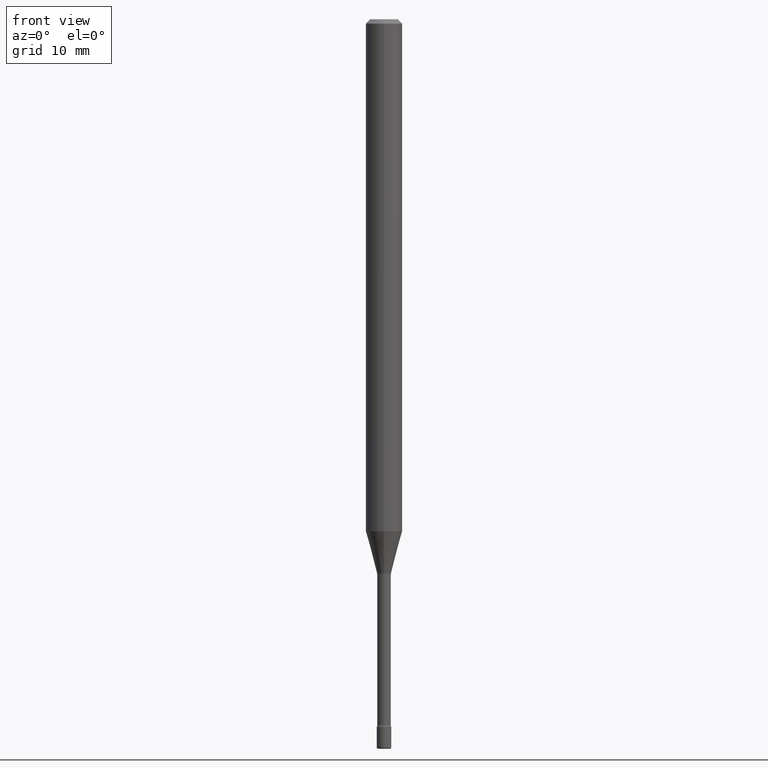
[diagram: clean part render]
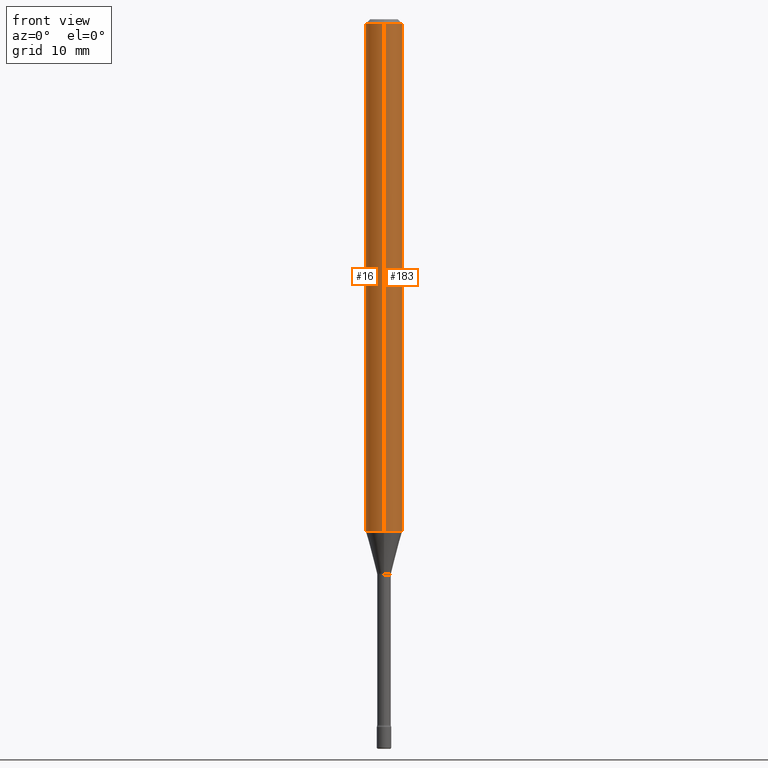
[diagram: same view with one multi-face feature highlighted, each face labeled with its STEP entity id]
A machine part, front view. The highlighted faces form ONE feature: a constant-radius fillet chain: 2 tangent blend faces with common blend radius 1.5875 mm. The faces share edges in the B-rep.
Their STEP definitions:
[1] entity #183 (Cylinder):
#8 = CARTESIAN_POINT ( 'NONE',  ( 3.668187614360904294E-31, -5.237244341073204376E-17, -0.01500000000000002720 ) ) ;
#17 = VERTEX_POINT ( 'NONE', #524 ) ;
#20 = VECTOR ( 'NONE', #506, 39.37007874015748143 ) ;
#53 = ORIENTED_EDGE ( 'NONE', *, *, #402, .F. ) ;
#59 = AXIS2_PLACEMENT_3D ( 'NONE', #60, #410, #224 ) ;
#60 = CARTESIAN_POINT ( 'NONE',  ( -1.169113584055446105E-44, 1.669184350826100908E-30, 4.780733988912460139E-16 ) ) ;
#68 = CARTESIAN_POINT ( 'NONE',  ( 4.440892098500625669E-16, 0.06250000000000000000, 2.598548846798629687E-16 ) ) ;
#95 = ORIENTED_EDGE ( 'NONE', *, *, #437, .T. ) ;
#101 = DIRECTION ( 'NONE',  ( -6.982962677686265922E-15, -1.000000000000000000, 4.370956789862821150E-15 ) ) ;
#109 = CIRCLE ( 'NONE', #136, 0.06250000000000000000 ) ;
#122 = EDGE_LOOP ( 'NONE', ( #95, #492, #53, #458 ) ) ;
#136 = AXIS2_PLACEMENT_3D ( 'NONE', #511, #547, #101 ) ;
#141 = VERTEX_POINT ( 'NONE', #316 ) ;
#170 = CIRCLE ( 'NONE', #232, 0.06250000000000000000 ) ;
#173 = EDGE_CURVE ( 'NONE', #17, #188, #302, .T. ) ;
#183 = ADVANCED_FACE ( 'NONE', ( #325 ), #496, .T. ) ;
#188 = VERTEX_POINT ( 'NONE', #228 ) ;
#224 = DIRECTION ( 'NONE',  ( -6.982962677686265922E-15, -1.000000000000000000, 3.491496227382130301E-15 ) ) ;
#228 = CARTESIAN_POINT ( 'NONE',  ( -4.364351673553912750E-16, -0.06250000000000005551, -0.01499999999999981036 ) ) ;
#232 = AXIS2_PLACEMENT_3D ( 'NONE', #8, #386, #268 ) ;
#268 = DIRECTION ( 'NONE',  ( -6.982962677686265922E-15, -1.000000000000000000, 3.483106191921935554E-15 ) ) ;
#280 = VECTOR ( 'NONE', #373, 39.37007874015748143 ) ;
#281 = VERTEX_POINT ( 'NONE', #558 ) ;
#302 = LINE ( 'NONE', #540, #20 ) ;
#316 = CARTESIAN_POINT ( 'NONE',  ( 4.440892098501052147E-16, 0.06249999999999384520, -1.754450018504814857 ) ) ;
#325 = FACE_OUTER_BOUND ( 'NONE', #122, .T. ) ;
#373 = DIRECTION ( 'NONE',  ( -2.445458409573931805E-29, 3.491496227382129512E-15, 1.000000000000000000 ) ) ;
#386 = DIRECTION ( 'NONE',  ( -2.445458409573931525E-29, 3.491496227382129512E-15, 1.000000000000000000 ) ) ;
#402 = EDGE_CURVE ( 'NONE', #188, #281, #170, .T. ) ;
#410 = DIRECTION ( 'NONE',  ( -2.445458409573931525E-29, 3.491496227382129512E-15, 1.000000000000000000 ) ) ;
#437 = EDGE_CURVE ( 'NONE', #17, #141, #109, .T. ) ;
#454 = LINE ( 'NONE', #68, #280 ) ;
#458 = ORIENTED_EDGE ( 'NONE', *, *, #173, .F. ) ;
#492 = ORIENTED_EDGE ( 'NONE', *, *, #495, .T. ) ;
#495 = EDGE_CURVE ( 'NONE', #141, #281, #454, .T. ) ;
#496 = CYLINDRICAL_SURFACE ( 'NONE', #59, 0.06250000000000000000 ) ;
#506 = DIRECTION ( 'NONE',  ( -2.445458409573931805E-29, 3.491496227382129512E-15, 1.000000000000000000 ) ) ;
#511 = CARTESIAN_POINT ( 'NONE',  ( 4.290434551929739000E-29, -6.125655620740067716E-15, -1.754450018504814635 ) ) ;
#524 = CARTESIAN_POINT ( 'NONE',  ( -4.364351673553489230E-16, -0.06250000000000614786, -1.754450018504814190 ) ) ;
#540 = CARTESIAN_POINT ( 'NONE',  ( -4.364351673553916201E-16, -0.06250000000000000000, 6.962919131026292564E-16 ) ) ;
#547 = DIRECTION ( 'NONE',  ( -2.445458409573931525E-29, 3.491496227382129512E-15, 1.000000000000000000 ) ) ;
#558 = CARTESIAN_POINT ( 'NONE',  ( 4.440892098501058063E-16, 0.06249999999999995143, -0.01500000000000024578 ) ) ;
[2] entity #16 (Cylinder):
#13 = AXIS2_PLACEMENT_3D ( 'NONE', #258, #533, #529 ) ;
#16 = ADVANCED_FACE ( 'NONE', ( #83 ), #531, .T. ) ;
#17 = VERTEX_POINT ( 'NONE', #524 ) ;
#20 = VECTOR ( 'NONE', #506, 39.37007874015748143 ) ;
#25 = ORIENTED_EDGE ( 'NONE', *, *, #495, .F. ) ;
#50 = ORIENTED_EDGE ( 'NONE', *, *, #125, .T. ) ;
#63 = CARTESIAN_POINT ( 'NONE',  ( 3.668187614360904294E-31, -5.237244341073204376E-17, -0.01500000000000002720 ) ) ;
#68 = CARTESIAN_POINT ( 'NONE',  ( 4.440892098500625669E-16, 0.06250000000000000000, 2.598548846798629687E-16 ) ) ;
#83 = FACE_OUTER_BOUND ( 'NONE', #147, .T. ) ;
#104 = ORIENTED_EDGE ( 'NONE', *, *, #173, .T. ) ;
#125 = EDGE_CURVE ( 'NONE', #141, #17, #181, .T. ) ;
#141 = VERTEX_POINT ( 'NONE', #316 ) ;
#147 = EDGE_LOOP ( 'NONE', ( #25, #50, #104, #187 ) ) ;
#173 = EDGE_CURVE ( 'NONE', #17, #188, #302, .T. ) ;
#181 = CIRCLE ( 'NONE', #13, 0.06250000000000000000 ) ;
#187 = ORIENTED_EDGE ( 'NONE', *, *, #532, .F. ) ;
#188 = VERTEX_POINT ( 'NONE', #228 ) ;
#203 = DIRECTION ( 'NONE',  ( -2.445458409573931525E-29, 3.491496227382129512E-15, 1.000000000000000000 ) ) ;
#228 = CARTESIAN_POINT ( 'NONE',  ( -4.364351673553912750E-16, -0.06250000000000005551, -0.01499999999999981036 ) ) ;
#258 = CARTESIAN_POINT ( 'NONE',  ( 4.290434551929739000E-29, -6.125655620740067716E-15, -1.754450018504814635 ) ) ;
#260 = DIRECTION ( 'NONE',  ( -2.445458409573931525E-29, 3.491496227382129512E-15, 1.000000000000000000 ) ) ;
#280 = VECTOR ( 'NONE', #373, 39.37007874015748143 ) ;
#281 = VERTEX_POINT ( 'NONE', #558 ) ;
#302 = LINE ( 'NONE', #540, #20 ) ;
#306 = AXIS2_PLACEMENT_3D ( 'NONE', #63, #260, #466 ) ;
#309 = DIRECTION ( 'NONE',  ( -6.982962677686265922E-15, -1.000000000000000000, 3.491496227382130301E-15 ) ) ;
#316 = CARTESIAN_POINT ( 'NONE',  ( 4.440892098501052147E-16, 0.06249999999999384520, -1.754450018504814857 ) ) ;
#373 = DIRECTION ( 'NONE',  ( -2.445458409573931805E-29, 3.491496227382129512E-15, 1.000000000000000000 ) ) ;
#399 = CIRCLE ( 'NONE', #306, 0.06250000000000000000 ) ;
#407 = AXIS2_PLACEMENT_3D ( 'NONE', #425, #203, #309 ) ;
#425 = CARTESIAN_POINT ( 'NONE',  ( -1.169113584055446105E-44, 1.669184350826100908E-30, 4.780733988912460139E-16 ) ) ;
#454 = LINE ( 'NONE', #68, #280 ) ;
#466 = DIRECTION ( 'NONE',  ( -6.982962677686265922E-15, -1.000000000000000000, 3.483106191921935554E-15 ) ) ;
#495 = EDGE_CURVE ( 'NONE', #141, #281, #454, .T. ) ;
#506 = DIRECTION ( 'NONE',  ( -2.445458409573931805E-29, 3.491496227382129512E-15, 1.000000000000000000 ) ) ;
#524 = CARTESIAN_POINT ( 'NONE',  ( -4.364351673553489230E-16, -0.06250000000000614786, -1.754450018504814190 ) ) ;
#529 = DIRECTION ( 'NONE',  ( -6.982962677686265922E-15, -1.000000000000000000, 4.370956789862821150E-15 ) ) ;
#531 = CYLINDRICAL_SURFACE ( 'NONE', #407, 0.06250000000000000000 ) ;
#532 = EDGE_CURVE ( 'NONE', #281, #188, #399, .T. ) ;
#533 = DIRECTION ( 'NONE',  ( -2.445458409573931525E-29, 3.491496227382129512E-15, 1.000000000000000000 ) ) ;
#540 = CARTESIAN_POINT ( 'NONE',  ( -4.364351673553916201E-16, -0.06250000000000000000, 6.962919131026292564E-16 ) ) ;
#558 = CARTESIAN_POINT ( 'NONE',  ( 4.440892098501058063E-16, 0.06249999999999995143, -0.01500000000000024578 ) ) ;